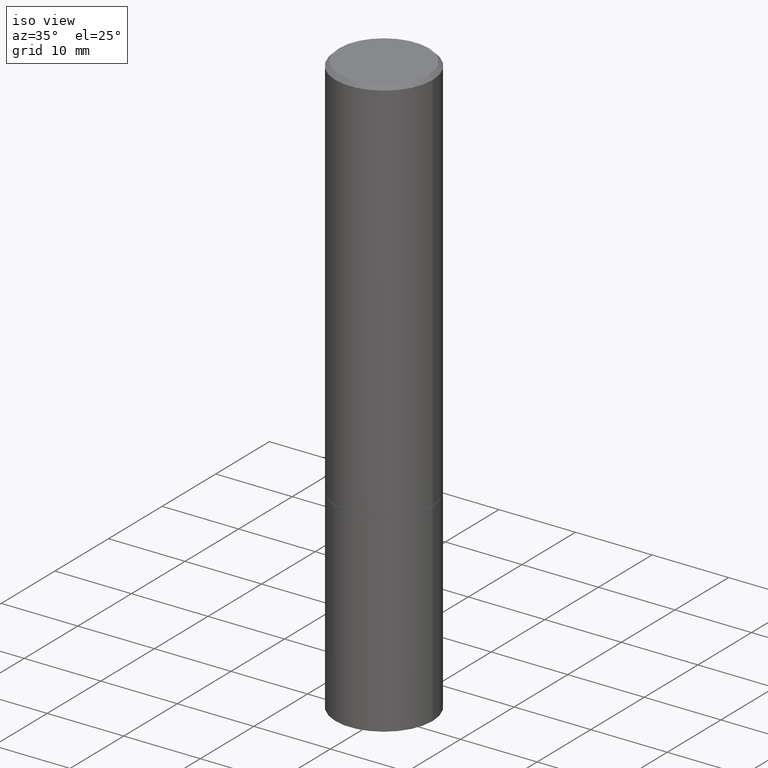
[diagram: clean part render]
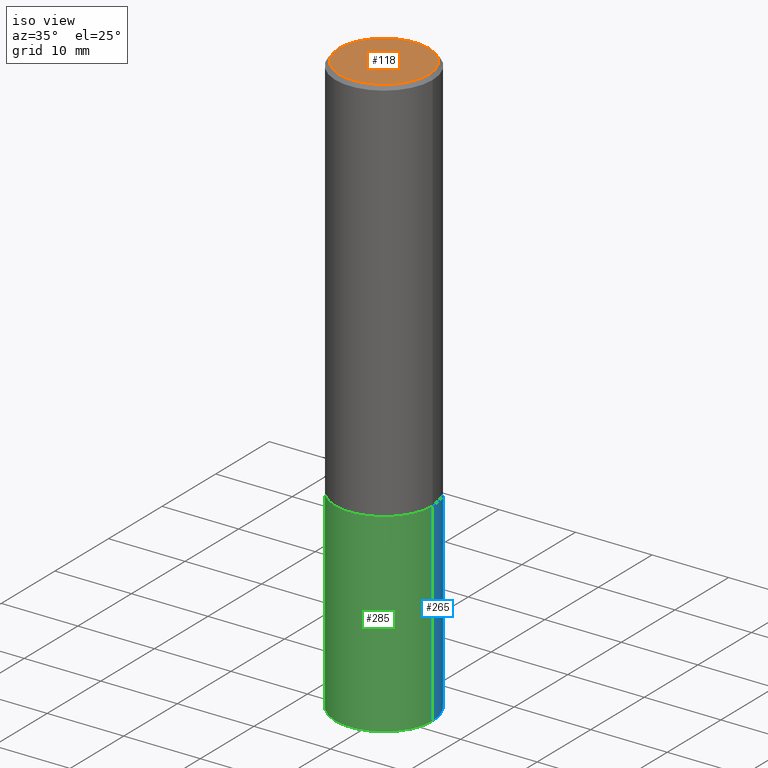
[diagram: same view with three faces highlighted in distinct colors, each labeled with its STEP entity id]
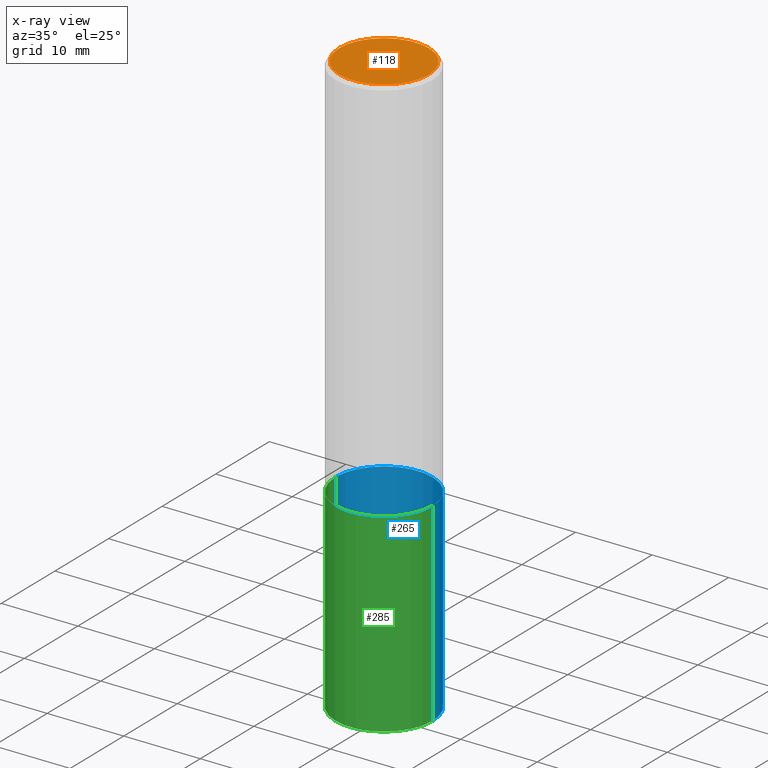
[diagram: x-ray of the same camera — body ghosted, the three highlighted faces saturated]
A machine part, iso view with three faces highlighted in distinct colors.
The next image is the same camera in x-ray (body ghosted, the three faces saturated) — at least one of them is partly hidden behind the body in this view.
Their STEP definitions:

[orange] entity #118 — the highlighted planar face has unit normal (0, -0, -1).
#2 = PLANE ( 'NONE',  #15 ) ;
#15 = AXIS2_PLACEMENT_3D ( 'NONE', #49, #113, #110 ) ;
#35 = ORIENTED_EDGE ( 'NONE', *, *, #114, .T. ) ;
#49 = CARTESIAN_POINT ( 'NONE',  ( 1.606081415867840278E-15, 0.2299999999999998712, -8.201147578943247056E-16 ) ) ;
#55 = EDGE_CURVE ( 'NONE', #299, #156, #171, .T. ) ;
#105 = DIRECTION ( 'NONE',  ( -2.445468806185136597E-29, 3.491481338843145583E-15, 1.000000000000000000 ) ) ;
#108 = CARTESIAN_POINT ( 'NONE',  ( 8.350811314681758556E-46, -1.192274536304357760E-31, -3.414809992080329023E-17 ) ) ;
#110 = DIRECTION ( 'NONE',  ( -1.000000000000000000, 6.982962677686265922E-15, -4.876176775795935793E-29 ) ) ;
#113 = DIRECTION ( 'NONE',  ( 2.438088387897960049E-29, -3.491481338843145188E-15, -1.000000000000000000 ) ) ;
#114 = EDGE_CURVE ( 'NONE', #156, #299, #300, .T. ) ;
#118 = ADVANCED_FACE ( 'NONE', ( #365 ), #2, .F. ) ;
#137 = AXIS2_PLACEMENT_3D ( 'NONE', #108, #252, #220 ) ;
#145 = CARTESIAN_POINT ( 'NONE',  ( -0.2299999999999998712, 1.640996229256271139E-15, -3.414809992081464243E-17 ) ) ;
#154 = CARTESIAN_POINT ( 'NONE',  ( 0.2299999999999998712, -1.681434332853598025E-15, -3.414809992079179628E-17 ) ) ;
#156 = VERTEX_POINT ( 'NONE', #145 ) ;
#171 = CIRCLE ( 'NONE', #137, 0.2299999999999998712 ) ;
#183 = EDGE_LOOP ( 'NONE', ( #35, #311 ) ) ;
#190 = CARTESIAN_POINT ( 'NONE',  ( 8.350811314681758556E-46, -1.192274536304357760E-31, -3.414809992080329023E-17 ) ) ;
#220 = DIRECTION ( 'NONE',  ( 1.000000000000000000, -6.982962677686266711E-15, 4.875813741439102577E-29 ) ) ;
#249 = DIRECTION ( 'NONE',  ( 1.000000000000000000, -6.982962677686266711E-15, 4.875813741439102577E-29 ) ) ;
#252 = DIRECTION ( 'NONE',  ( -2.445468806185136597E-29, 3.491481338843145583E-15, 1.000000000000000000 ) ) ;
#299 = VERTEX_POINT ( 'NONE', #154 ) ;
#300 = CIRCLE ( 'NONE', #313, 0.2299999999999998712 ) ;
#311 = ORIENTED_EDGE ( 'NONE', *, *, #55, .T. ) ;
#313 = AXIS2_PLACEMENT_3D ( 'NONE', #190, #105, #249 ) ;
#365 = FACE_OUTER_BOUND ( 'NONE', #183, .T. ) ;

[blue] entity #265 — the highlighted cylindrical surface (partial cylindrical patch) has radius 6.35 mm, axis along (-0, 0, 1).
#8 = ORIENTED_EDGE ( 'NONE', *, *, #33, .T. ) ;
#23 = EDGE_CURVE ( 'NONE', #324, #271, #344, .T. ) ;
#32 = AXIS2_PLACEMENT_3D ( 'NONE', #188, #102, #153 ) ;
#33 = EDGE_CURVE ( 'NONE', #271, #257, #213, .T. ) ;
#38 = DIRECTION ( 'NONE',  ( 1.000000000000000000, -6.982962677686266711E-15, 4.876176775795935793E-29 ) ) ;
#42 = CARTESIAN_POINT ( 'NONE',  ( 0.000000000000000000, 0.000000000000000000, 0.000000000000000000 ) ) ;
#43 = EDGE_LOOP ( 'NONE', ( #295, #8, #238, #354 ) ) ;
#53 = AXIS2_PLACEMENT_3D ( 'NONE', #42, #64, #38 ) ;
#64 = DIRECTION ( 'NONE',  ( -2.445468806185136597E-29, 3.491481338843145583E-15, 1.000000000000000000 ) ) ;
#74 = VECTOR ( 'NONE', #262, 39.37007874015748143 ) ;
#78 = CARTESIAN_POINT ( 'NONE',  ( 0.2500000000000000000, -8.728703347107858632E-15, -2.000000000000000444 ) ) ;
#95 = EDGE_CURVE ( 'NONE', #324, #100, #334, .T. ) ;
#96 = CARTESIAN_POINT ( 'NONE',  ( 0.2500000000000000000, -1.222018468595100303E-14, -3.000000000000000444 ) ) ;
#100 = VERTEX_POINT ( 'NONE', #78 ) ;
#102 = DIRECTION ( 'NONE',  ( -2.445468806185136597E-29, 3.491481338843145583E-15, 1.000000000000000000 ) ) ;
#112 = CIRCLE ( 'NONE', #130, 0.2500000000000000000 ) ;
#119 = EDGE_CURVE ( 'NONE', #100, #257, #112, .T. ) ;
#130 = AXIS2_PLACEMENT_3D ( 'NONE', #162, #304, #218 ) ;
#153 = DIRECTION ( 'NONE',  ( 1.000000000000000000, -6.982962677686262766E-15, 0.000000000000000000 ) ) ;
#159 = CARTESIAN_POINT ( 'NONE',  ( -0.2500000000000000000, -6.952346507707613689E-15, -3.000000000000000444 ) ) ;
#162 = CARTESIAN_POINT ( 'NONE',  ( 4.890937612370273754E-29, -6.982962677686291954E-15, -2.000000000000000444 ) ) ;
#176 = FACE_OUTER_BOUND ( 'NONE', #43, .T. ) ;
#182 = CYLINDRICAL_SURFACE ( 'NONE', #53, 0.2500000000000000000 ) ;
#188 = CARTESIAN_POINT ( 'NONE',  ( 7.336406418555409790E-29, -1.047444401652943635E-14, -3.000000000000000444 ) ) ;
#192 = VECTOR ( 'NONE', #242, 39.37007874015748143 ) ;
#213 = LINE ( 'NONE', #326, #74 ) ;
#218 = DIRECTION ( 'NONE',  ( 1.000000000000000000, -6.982962677686266711E-15, 0.000000000000000000 ) ) ;
#238 = ORIENTED_EDGE ( 'NONE', *, *, #119, .F. ) ;
#242 = DIRECTION ( 'NONE',  ( -2.445468806185136877E-29, 3.491481338843145188E-15, 1.000000000000000000 ) ) ;
#245 = CARTESIAN_POINT ( 'NONE',  ( 0.2500000000000000000, -1.745740669421566678E-15, 1.219044193948983948E-29 ) ) ;
#257 = VERTEX_POINT ( 'NONE', #294 ) ;
#262 = DIRECTION ( 'NONE',  ( -2.445468806185136877E-29, 3.491481338843145188E-15, 1.000000000000000000 ) ) ;
#265 = ADVANCED_FACE ( 'NONE', ( #176 ), #182, .T. ) ;
#271 = VERTEX_POINT ( 'NONE', #159 ) ;
#294 = CARTESIAN_POINT ( 'NONE',  ( -0.2500000000000000000, -6.952346507707613689E-15, -2.000000000000000444 ) ) ;
#295 = ORIENTED_EDGE ( 'NONE', *, *, #23, .T. ) ;
#304 = DIRECTION ( 'NONE',  ( -2.445468806185136597E-29, 3.491481338843145583E-15, 1.000000000000000000 ) ) ;
#324 = VERTEX_POINT ( 'NONE', #96 ) ;
#326 = CARTESIAN_POINT ( 'NONE',  ( -0.2500000000000000000, 1.776356839400250465E-15, -1.229733772563726445E-29 ) ) ;
#334 = LINE ( 'NONE', #245, #192 ) ;
#344 = CIRCLE ( 'NONE', #32, 0.2500000000000000000 ) ;
#354 = ORIENTED_EDGE ( 'NONE', *, *, #95, .F. ) ;

[green] entity #285 — the highlighted cylindrical surface (partial cylindrical patch) has radius 6.35 mm, axis along (-0, 0, 1).
#3 = EDGE_CURVE ( 'NONE', #271, #324, #366, .T. ) ;
#4 = ORIENTED_EDGE ( 'NONE', *, *, #33, .F. ) ;
#30 = CARTESIAN_POINT ( 'NONE',  ( 4.890937612370273754E-29, -6.982962677686291954E-15, -2.000000000000000444 ) ) ;
#33 = EDGE_CURVE ( 'NONE', #271, #257, #213, .T. ) ;
#44 = CARTESIAN_POINT ( 'NONE',  ( 7.336406418555409790E-29, -1.047444401652943635E-14, -3.000000000000000444 ) ) ;
#47 = DIRECTION ( 'NONE',  ( 1.000000000000000000, -6.982962677686262766E-15, 0.000000000000000000 ) ) ;
#60 = AXIS2_PLACEMENT_3D ( 'NONE', #30, #79, #166 ) ;
#66 = EDGE_CURVE ( 'NONE', #257, #100, #293, .T. ) ;
#74 = VECTOR ( 'NONE', #262, 39.37007874015748143 ) ;
#78 = CARTESIAN_POINT ( 'NONE',  ( 0.2500000000000000000, -8.728703347107858632E-15, -2.000000000000000444 ) ) ;
#79 = DIRECTION ( 'NONE',  ( -2.445468806185136597E-29, 3.491481338843145583E-15, 1.000000000000000000 ) ) ;
#95 = EDGE_CURVE ( 'NONE', #324, #100, #334, .T. ) ;
#96 = CARTESIAN_POINT ( 'NONE',  ( 0.2500000000000000000, -1.222018468595100303E-14, -3.000000000000000444 ) ) ;
#100 = VERTEX_POINT ( 'NONE', #78 ) ;
#131 = DIRECTION ( 'NONE',  ( -2.445468806185136597E-29, 3.491481338843145583E-15, 1.000000000000000000 ) ) ;
#132 = AXIS2_PLACEMENT_3D ( 'NONE', #350, #131, #184 ) ;
#147 = ORIENTED_EDGE ( 'NONE', *, *, #66, .F. ) ;
#152 = CYLINDRICAL_SURFACE ( 'NONE', #132, 0.2500000000000000000 ) ;
#159 = CARTESIAN_POINT ( 'NONE',  ( -0.2500000000000000000, -6.952346507707613689E-15, -3.000000000000000444 ) ) ;
#166 = DIRECTION ( 'NONE',  ( 1.000000000000000000, -6.982962677686266711E-15, 0.000000000000000000 ) ) ;
#184 = DIRECTION ( 'NONE',  ( 1.000000000000000000, -6.982962677686266711E-15, 4.876176775795935793E-29 ) ) ;
#192 = VECTOR ( 'NONE', #242, 39.37007874015748143 ) ;
#211 = DIRECTION ( 'NONE',  ( -2.445468806185136597E-29, 3.491481338843145583E-15, 1.000000000000000000 ) ) ;
#213 = LINE ( 'NONE', #326, #74 ) ;
#242 = DIRECTION ( 'NONE',  ( -2.445468806185136877E-29, 3.491481338843145188E-15, 1.000000000000000000 ) ) ;
#245 = CARTESIAN_POINT ( 'NONE',  ( 0.2500000000000000000, -1.745740669421566678E-15, 1.219044193948983948E-29 ) ) ;
#257 = VERTEX_POINT ( 'NONE', #294 ) ;
#261 = AXIS2_PLACEMENT_3D ( 'NONE', #44, #211, #47 ) ;
#262 = DIRECTION ( 'NONE',  ( -2.445468806185136877E-29, 3.491481338843145188E-15, 1.000000000000000000 ) ) ;
#271 = VERTEX_POINT ( 'NONE', #159 ) ;
#284 = ORIENTED_EDGE ( 'NONE', *, *, #3, .T. ) ;
#285 = ADVANCED_FACE ( 'NONE', ( #347 ), #152, .T. ) ;
#293 = CIRCLE ( 'NONE', #60, 0.2500000000000000000 ) ;
#294 = CARTESIAN_POINT ( 'NONE',  ( -0.2500000000000000000, -6.952346507707613689E-15, -2.000000000000000444 ) ) ;
#302 = ORIENTED_EDGE ( 'NONE', *, *, #95, .T. ) ;
#324 = VERTEX_POINT ( 'NONE', #96 ) ;
#326 = CARTESIAN_POINT ( 'NONE',  ( -0.2500000000000000000, 1.776356839400250465E-15, -1.229733772563726445E-29 ) ) ;
#334 = LINE ( 'NONE', #245, #192 ) ;
#347 = FACE_OUTER_BOUND ( 'NONE', #348, .T. ) ;
#348 = EDGE_LOOP ( 'NONE', ( #4, #284, #302, #147 ) ) ;
#350 = CARTESIAN_POINT ( 'NONE',  ( 0.000000000000000000, 0.000000000000000000, 0.000000000000000000 ) ) ;
#366 = CIRCLE ( 'NONE', #261, 0.2500000000000000000 ) ;